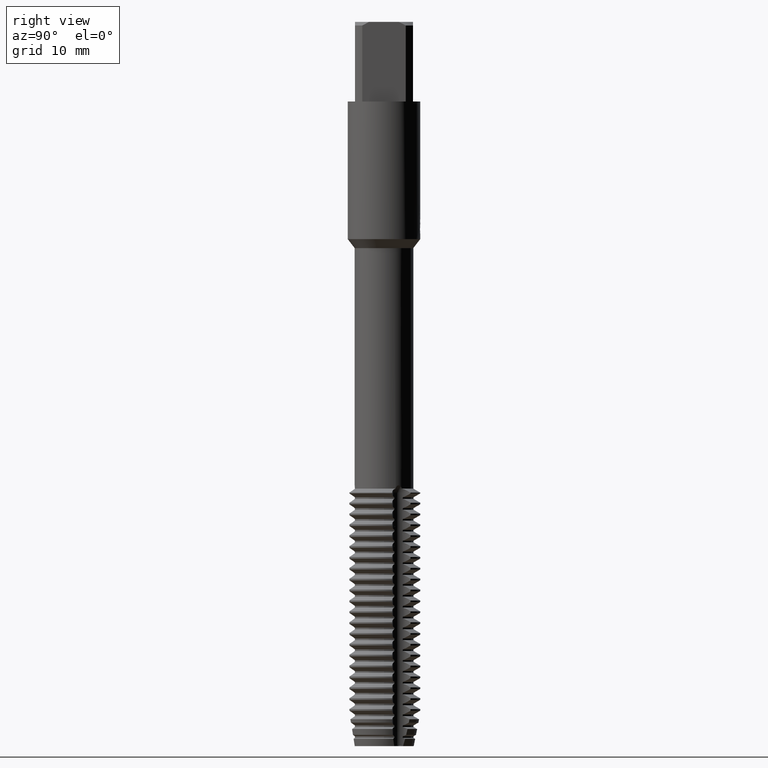
[diagram: clean part render]
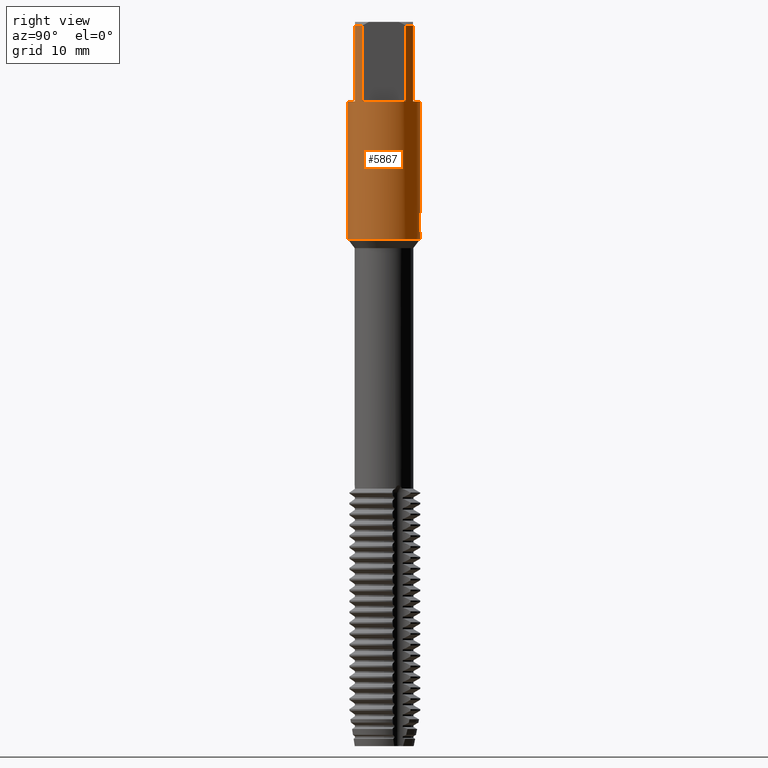
[diagram: same view with one face highlighted and labeled with its STEP entity id]
A machine part, right view. The second image highlights one B-rep face of the part: STEP entity #5867.
In plain terms, the highlighted cylindrical surface (edge-blend (fillet) strip) has radius 5 mm, axis along (-0, -0, 1).
Its self-contained STEP definition (entity closure, byte-faithful):
#2801=EDGE_CURVE('',#7179,#7195,#8342,.T.);
#2815=EDGE_CURVE('',#3433,#6113,#8358,.T.);
#2897=EDGE_CURVE('',#3399,#6113,#8448,.T.);
#3065=EDGE_CURVE('',#7275,#4531,#8634,.T.);
#3399=VERTEX_POINT('',#8994);
#3433=VERTEX_POINT('',#9031);
#3645=EDGE_CURVE('',#7181,#7547,#9259,.T.);
#3715=VERTEX_POINT('',#9333);
#3807=VERTEX_POINT('',#9435);
#3891=EDGE_CURVE('',#5987,#3991,#9528,.T.);
#3991=VERTEX_POINT('',#9642);
#4031=EDGE_CURVE('',#7989,#6159,#9683,.T.);
#4437=EDGE_CURVE('',#7935,#4439,#10128,.T.);
#4439=VERTEX_POINT('',#10130);
#4531=VERTEX_POINT('',#10229);
#4825=EDGE_CURVE('',#3433,#7935,#10553,.T.);
#4835=EDGE_CURVE('',#7547,#3399,#10564,.T.);
#5121=EDGE_CURVE('',#5825,#7195,#10876,.T.);
#5407=EDGE_CURVE('',#6159,#7179,#11191,.T.);
#5567=EDGE_CURVE('',#6387,#3807,#11363,.T.);
#5787=EDGE_CURVE('',#6471,#6387,#11604,.T.);
#5825=VERTEX_POINT('',#11645);
#5867=ADVANCED_FACE('',(#11693),#11694,.T.);
#5987=VERTEX_POINT('',#11827);
#6071=EDGE_CURVE('',#3715,#7181,#11915,.T.);
#6113=VERTEX_POINT('',#11959);
#6159=VERTEX_POINT('',#12008);
#6387=VERTEX_POINT('',#12251);
#6471=VERTEX_POINT('',#12338);
#6685=EDGE_CURVE('',#4531,#3715,#12576,.T.);
#6925=EDGE_CURVE('',#7989,#7275,#12845,.T.);
#6957=EDGE_CURVE('',#4439,#5987,#12879,.T.);
#7179=VERTEX_POINT('',#13123);
#7181=VERTEX_POINT('',#13125);
#7195=VERTEX_POINT('',#13139);
#7255=EDGE_CURVE('',#3807,#5825,#13201,.T.);
#7275=VERTEX_POINT('',#13222);
#7547=VERTEX_POINT('',#13515);
#7935=VERTEX_POINT('',#13939);
#7989=VERTEX_POINT('',#13994);
#8133=EDGE_CURVE('',#3991,#6471,#14154,.T.);
#8342=LINE('',#14373,#14374);
#8358=LINE('',#14401,#14402);
#8448=B_SPLINE_CURVE_WITH_KNOTS('',3,(#14526,#14527,#14528,#14529,#14530,#14531,#14532,#14533,#14534,#14535,#14536,#14537,#14538,#14539,#14540,#14541,#14542,#14543,#14544,#14545,#14546,#14547,#14548,#14549,#14550,#14551,#14552),.UNSPECIFIED.,.F.,.F.,(4,2,3,2,2,2,2,2,2,2,2,2,4),(-0.542486104801742,-0.271243052400871,0.0,0.271243052400871,0.542486104801742,0.814298814936949,1.08611152507216,1.35696845964794,1.62782539422372,1.89896433698446,2.1701032797452,2.44124222250595,2.71238116526669),.UNSPECIFIED.);
#8634=ELLIPSE('',#14842,15.2399728668489,5.0);
#8994=CARTESIAN_POINT('',(0.799431726384364,4.93567714856332,-26.250000276873));
#9031=CARTESIAN_POINT('',(-6.12303176911189E-016,5.0,-11.0));
#9259=LINE('',#15928,#15929);
#9333=CARTESIAN_POINT('',(0.873560781758956,4.92309776061503,-29.0087351791531));
#9435=CARTESIAN_POINT('',(3.0,-4.0,-0.5));
#9528=LINE('',#16379,#16380);
#9642=CARTESIAN_POINT('',(4.0,3.0,-11.0));
#9683=LINE('',#16666,#16667);
#10128=LINE('',#17431,#17432);
#10130=CARTESIAN_POINT('',(3.0,4.0,-0.5));
#10229=CARTESIAN_POINT('',(0.873560781758957,4.92309776061503,-27.5698931596091));
#10553=CIRCLE('',#18137,5.0);
#10564=B_SPLINE_CURVE_WITH_KNOTS('',3,(#18153,#18154,#18155,#18156,#18157,#18158,#18159,#18160,#18161,#18162),.UNSPECIFIED.,.F.,.F.,(4,2,2,2,4),(0.618463277568802,0.927694916353203,1.2369265551376,1.54583876733634,1.85475097953508),.UNSPECIFIED.);
#10876=CIRCLE('',#18670,5.0);
#11191=CIRCLE('',#19188,5.0);
#11363=CIRCLE('',#19523,5.0);
#11604=LINE('',#19914,#19915);
#11645=CARTESIAN_POINT('',(3.0,-4.0,-11.0));
#11693=FACE_OUTER_BOUND('',#20076,.T.);
#11694=CYLINDRICAL_SURFACE('',#20077,5.0);
#11827=CARTESIAN_POINT('',(4.0,3.0,-0.5));
#11915=B_SPLINE_CURVE_WITH_KNOTS('',3,(#20503,#20504,#20505,#20506,#20507,#20508,#20509,#20510,#20511,#20512),.UNSPECIFIED.,.F.,.F.,(4,2,2,2,4),(8.03978938391208,8.34870158568317,8.65761378745426,8.96684541549286,9.27607704353145),.UNSPECIFIED.);
#11959=CARTESIAN_POINT('',(2.28519599946872E-015,5.0,-27.2732688117743));
#12008=CARTESIAN_POINT('',(0.0,5.0,-30.0));
#12251=CARTESIAN_POINT('',(4.0,-3.0,-0.5));
#12338=CARTESIAN_POINT('',(4.0,-3.0,-11.0));
#12576=LINE('',#21747,#21748);
#12845=B_SPLINE_CURVE_WITH_KNOTS('',3,(#22209,#22210,#22211,#22212,#22213,#22214,#22215,#22216,#22217,#22218,#22219,#22220,#22221,#22222,#22223,#22224),.UNSPECIFIED.,.F.,.F.,(4,2,2,2,2,2,2,4),(5.87517564836087,6.18447732711524,6.49384941721167,6.80322150730809,7.11259359740452,7.42196568750094,7.73087791711931,8.03979014673768),.UNSPECIFIED.);
#12879=CIRCLE('',#22275,5.0);
#13123=CARTESIAN_POINT('',(6.12303176911189E-016,-5.0,-30.0));
#13125=CARTESIAN_POINT('',(1.33721006514658,4.81786978255646,-28.5401657003257));
#13139=CARTESIAN_POINT('',(6.12303176911189E-016,-5.0,-11.0));
#13201=LINE('',#22786,#22787);
#13222=CARTESIAN_POINT('',(0.29010312703583,4.99157692274536,-29.2498328990228));
#13515=CARTESIAN_POINT('',(1.33721006514658,4.81786978255647,-26.7650484364821));
#13939=CARTESIAN_POINT('',(3.0,4.0,-11.0));
#13994=CARTESIAN_POINT('',(-1.78283372566562E-015,5.0,-29.2810253601033));
#14154=CIRCLE('',#24451,5.0);
#14373=CARTESIAN_POINT('',(6.12303176911189E-016,-5.0,-15.25));
#14374=VECTOR('',#24820,1.0);
#14401=CARTESIAN_POINT('',(-6.12303176911189E-016,5.0,-15.25));
#14402=VECTOR('',#25027,1.0);
#14526=CARTESIAN_POINT('',(0.665122770091171,4.95556371169883,-26.0635963457478));
#14527=CARTESIAN_POINT('',(0.728735196954596,4.94702581852882,-26.1272777273236));
#14528=CARTESIAN_POINT('',(0.783964166103463,4.93829748078097,-26.2079436035979));
#14529=CARTESIAN_POINT('',(0.857301933462897,4.92609533329604,-26.3849114173306));
#14530=CARTESIAN_POINT('',(0.875400981188567,4.92277087849253,-26.4812276617865));
#14531=CARTESIAN_POINT('',(0.875400981188567,4.92277087849253,-26.5716420125868));
#14532=CARTESIAN_POINT('',(0.875400981188567,4.92277087849253,-26.6620563633871));
#14533=CARTESIAN_POINT('',(0.857301933462898,4.92609533329604,-26.7583726078429));
#14534=CARTESIAN_POINT('',(0.783964166103462,4.93829748078097,-26.9353404215757));
#14535=CARTESIAN_POINT('',(0.728735196954596,4.94702581852882,-27.01600629785));
#14536=CARTESIAN_POINT('',(0.601376746032751,4.96411953593411,-27.1435028030135));
#14537=CARTESIAN_POINT('',(0.520641197115553,4.97361399538109,-27.1988552844728));
#14538=CARTESIAN_POINT('',(0.343503822480856,4.98897870858442,-27.2723670116056));
#14539=CARTESIAN_POINT('',(0.247086219827462,4.9947129574863,-27.2905166027747));
#14540=CARTESIAN_POINT('',(0.0662849978754682,5.00037576555244,-27.2905166027747));
#14541=CARTESIAN_POINT('',(-0.0299853354073722,5.00069421157823,-27.2724810356509));
#14542=CARTESIAN_POINT('',(-0.207042529230842,4.99649628332508,-27.1991606175219));
#14543=CARTESIAN_POINT('',(-0.287834149954027,4.99211780487336,-27.1438794313977));
#14544=CARTESIAN_POINT('',(-0.415469449620835,4.98311973872716,-27.0163325263823));
#14545=CARTESIAN_POINT('',(-0.470822894462523,4.97792007270922,-26.9355206130663));
#14546=CARTESIAN_POINT('',(-0.544264412763407,4.97042641093864,-26.7583690868499));
#14547=CARTESIAN_POINT('',(-0.562348199187247,4.96827580785033,-26.6620216601737));
#14548=CARTESIAN_POINT('',(-0.562348199187247,4.96827580785033,-26.4812623649999));
#14549=CARTESIAN_POINT('',(-0.544264412763407,4.97042641093864,-26.3849149383237));
#14550=CARTESIAN_POINT('',(-0.470822894462523,4.97792007270922,-26.2077634121072));
#14551=CARTESIAN_POINT('',(-0.415469449620835,4.98311973872716,-26.1269514987913));
#14552=CARTESIAN_POINT('',(-0.351618594554052,4.98762111271133,-26.0631448640467));
#14842=AXIS2_PLACEMENT_3D('',#25354,#25355,#25356);
#15928=CARTESIAN_POINT('',(1.33721006514658,4.81786978255646,-27.6526070684039));
#15929=VECTOR('',#25969,1.0);
#16379=CARTESIAN_POINT('',(4.0,3.0,-5.75));
#16380=VECTOR('',#26292,1.0);
#16666=CARTESIAN_POINT('',(-6.12303176911189E-016,5.0,-15.25));
#16667=VECTOR('',#26448,1.0);
#17431=CARTESIAN_POINT('',(3.0,4.0,-5.75));
#17432=VECTOR('',#26928,1.0);
#18137=AXIS2_PLACEMENT_3D('',#27385,#27386,#27387);
#18153=CARTESIAN_POINT('',(1.47544634459503,4.77734843655151,-27.0272211678144));
#18154=CARTESIAN_POINT('',(1.43377097583397,4.79021953600577,-26.927008039481));
#18155=CARTESIAN_POINT('',(1.38199542398865,4.8056132724731,-26.8311155297459));
#18156=CARTESIAN_POINT('',(1.26262396572432,4.83834796156109,-26.6539520264488));
#18157=CARTESIAN_POINT('',(1.19501792490561,4.8556548500921,-26.5726815690952));
#18158=CARTESIAN_POINT('',(1.05119213349514,4.88880718633437,-26.428908059153));
#18159=CARTESIAN_POINT('',(0.969955783216372,4.90584149133193,-26.3613633587199));
#18160=CARTESIAN_POINT('',(0.792829662772182,4.93756175507685,-26.2420776587655));
#18161=CARTESIAN_POINT('',(0.696940397087139,4.95221768350352,-26.1903279265819));
#18162=CARTESIAN_POINT('',(0.59673652580259,4.96426283739822,-26.1486787609541));
#18670=AXIS2_PLACEMENT_3D('',#27722,#27723,#27724);
#19188=AXIS2_PLACEMENT_3D('',#28264,#28265,#28266);
#19523=AXIS2_PLACEMENT_3D('',#28430,#28431,#28432);
#19914=CARTESIAN_POINT('',(4.0,-3.0,-5.75));
#19915=VECTOR('',#28700,1.0);
#20076=EDGE_LOOP('',(#28805,#28806,#28807,#28808,#28809,#28810,#28811,#28812,#28813,#28814,#28815,#28816,#28817,#28818,#28819,#28820,#28821,#28822,#28823,#28824));
#20077=AXIS2_PLACEMENT_3D('',#28825,#28826,#28827);
#20503=CARTESIAN_POINT('',(0.596736548110756,4.96426283471664,-29.1565353597382));
#20504=CARTESIAN_POINT('',(0.696940415976903,4.95221768077605,-29.1148861955132));
#20505=CARTESIAN_POINT('',(0.792829678386025,4.93756175251447,-29.0631364650754));
#20506=CARTESIAN_POINT('',(0.969955792779442,4.90584148938556,-28.9438507691423));
#20507=CARTESIAN_POINT('',(1.05119214028325,4.88880718483703,-28.8763060709848));
#20508=CARTESIAN_POINT('',(1.1950179267128,4.85565484960812,-28.7325325659411));
#20509=CARTESIAN_POINT('',(1.26262396516471,4.83834796167932,-28.6512621113954));
#20510=CARTESIAN_POINT('',(1.38199541925443,4.80561327380657,-28.4740986142183));
#20511=CARTESIAN_POINT('',(1.4337709692914,4.79021953794996,-28.3782061077952));
#20512=CARTESIAN_POINT('',(1.47544633659597,4.77734843902196,-28.2779929829259));
#21747=CARTESIAN_POINT('',(0.873560781758957,4.92309776061503,-28.2893141693811));
#21748=VECTOR('',#29681,1.0);
#22209=CARTESIAN_POINT('',(-1.37919625933141,4.80601890115366,-28.5624404256203));
#22210=CARTESIAN_POINT('',(-1.31957521374487,4.82312851403775,-28.6509601597598));
#22211=CARTESIAN_POINT('',(-1.25205684175205,4.84126211135571,-28.7321654513649));
#22212=CARTESIAN_POINT('',(-1.10836495207318,4.87616599259845,-28.8759115514073));
#22213=CARTESIAN_POINT('',(-1.0271524301646,4.89418890879516,-28.943486795378));
#22214=CARTESIAN_POINT('',(-0.850055905397218,4.9280353232664,-29.0628453591325));
#22215=CARTESIAN_POINT('',(-0.754172188044362,4.94382885968066,-29.1146375967458));
#22216=CARTESIAN_POINT('',(-0.553725999780851,4.97027232652294,-29.1980281920328));
#22217=CARTESIAN_POINT('',(-0.448990720596503,4.98092390938096,-29.2296924022892));
#22218=CARTESIAN_POINT('',(-0.237871423561602,4.99545922254228,-29.2713202804398));
#22219=CARTESIAN_POINT('',(-0.13148454027928,4.99933459384723,-29.2812723335086));
#22220=CARTESIAN_POINT('',(0.0746069172274577,5.00050365281921,-29.2812723335086));
#22221=CARTESIAN_POINT('',(0.180879006433094,4.99784409598263,-29.271349312763));
#22222=CARTESIAN_POINT('',(0.391840688075153,4.98574204084828,-29.2298000876985));
#22223=CARTESIAN_POINT('',(0.496532945230266,4.97630796240248,-29.1981849619546));
#22224=CARTESIAN_POINT('',(0.596736821506943,4.96426280185264,-29.1565357940623));
#22275=AXIS2_PLACEMENT_3D('',#30241,#30242,#30243);
#22786=CARTESIAN_POINT('',(3.0,-4.0,-5.75));
#22787=VECTOR('',#30562,1.0);
#24451=AXIS2_PLACEMENT_3D('',#31522,#31523,#31524);
#24820=DIRECTION('',(-0.0,-0.0,1.0));
#25027=DIRECTION('',(0.0,0.0,-1.0));
#25354=CARTESIAN_POINT('',(0.0,0.0,-30.0851219173269));
#25355=DIRECTION('',(0.944648353914092,0.0,-0.328084573619969));
#25356=DIRECTION('',(0.328084573619969,-0.0,0.944648353914092));
#25969=DIRECTION('',(-0.0,-0.0,1.0));
#26292=DIRECTION('',(0.0,0.0,-1.0));
#26448=DIRECTION('',(0.0,0.0,-1.0));
#26928=DIRECTION('',(-0.0,-0.0,1.0));
#27385=CARTESIAN_POINT('',(0.0,0.0,-11.0));
#27386=DIRECTION('',(0.0,0.0,-1.0));
#27387=DIRECTION('',(0.0,1.0,0.0));
#27722=CARTESIAN_POINT('',(0.0,0.0,-11.0));
#27723=DIRECTION('',(0.0,0.0,-1.0));
#27724=DIRECTION('',(0.0,1.0,0.0));
#28264=CARTESIAN_POINT('',(0.0,0.0,-30.0));
#28265=DIRECTION('',(0.0,0.0,-1.0));
#28266=DIRECTION('',(0.0,1.0,0.0));
#28430=CARTESIAN_POINT('',(0.0,0.0,-0.5));
#28431=DIRECTION('',(0.0,0.0,-1.0));
#28432=DIRECTION('',(0.0,1.0,0.0));
#28700=DIRECTION('',(-0.0,-0.0,1.0));
#28805=ORIENTED_EDGE('',*,*,#2815,.F.);
#28806=ORIENTED_EDGE('',*,*,#4825,.T.);
#28807=ORIENTED_EDGE('',*,*,#4437,.T.);
#28808=ORIENTED_EDGE('',*,*,#6957,.T.);
#28809=ORIENTED_EDGE('',*,*,#3891,.T.);
#28810=ORIENTED_EDGE('',*,*,#8133,.T.);
#28811=ORIENTED_EDGE('',*,*,#5787,.T.);
#28812=ORIENTED_EDGE('',*,*,#5567,.T.);
#28813=ORIENTED_EDGE('',*,*,#7255,.T.);
#28814=ORIENTED_EDGE('',*,*,#5121,.T.);
#28815=ORIENTED_EDGE('',*,*,#2801,.F.);
#28816=ORIENTED_EDGE('',*,*,#5407,.F.);
#28817=ORIENTED_EDGE('',*,*,#4031,.F.);
#28818=ORIENTED_EDGE('',*,*,#6925,.T.);
#28819=ORIENTED_EDGE('',*,*,#3065,.T.);
#28820=ORIENTED_EDGE('',*,*,#6685,.T.);
#28821=ORIENTED_EDGE('',*,*,#6071,.T.);
#28822=ORIENTED_EDGE('',*,*,#3645,.T.);
#28823=ORIENTED_EDGE('',*,*,#4835,.T.);
#28824=ORIENTED_EDGE('',*,*,#2897,.T.);
#28825=CARTESIAN_POINT('',(0.0,0.0,-15.25));
#28826=DIRECTION('',(-0.0,-0.0,1.0));
#28827=DIRECTION('',(0.0,1.0,0.0));
#29681=DIRECTION('',(0.0,0.0,-1.0));
#30241=CARTESIAN_POINT('',(0.0,0.0,-0.5));
#30242=DIRECTION('',(0.0,0.0,-1.0));
#30243=DIRECTION('',(0.0,1.0,0.0));
#30562=DIRECTION('',(0.0,0.0,-1.0));
#31522=CARTESIAN_POINT('',(0.0,0.0,-11.0));
#31523=DIRECTION('',(0.0,0.0,-1.0));
#31524=DIRECTION('',(0.0,1.0,0.0));